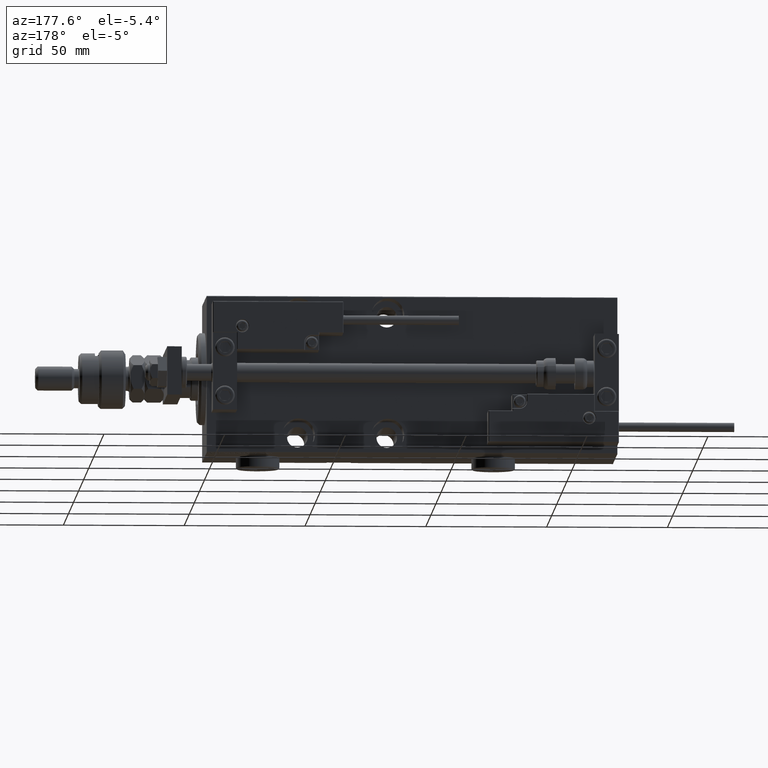
[diagram: clean part render]
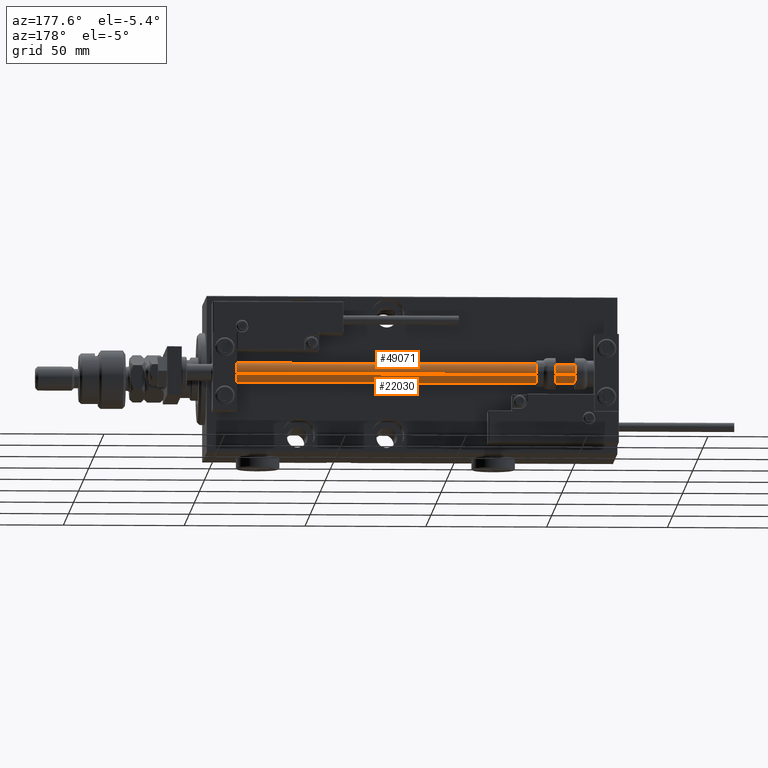
[diagram: same view with one multi-face feature highlighted, each face labeled with its STEP entity id]
A machine part, auxiliary view. The highlighted faces form ONE feature: a constant-radius fillet chain: 2 tangent blend faces with common blend radius 4 mm. The faces share edges in the B-rep.
Their STEP definitions:
[1] entity #49071 (Cylinder):
#1521 = CARTESIAN_POINT ( 'NONE',  ( 0.000000000000000000, 0.000000000000000000, 170.0000000000000000 ) ) ;
#2111 = DIRECTION ( 'NONE',  ( 1.000000000000000000, 0.000000000000000000, 0.000000000000000000 ) ) ;
#4039 = ORIENTED_EDGE ( 'NONE', *, *, #40826, .F. ) ;
#4102 = AXIS2_PLACEMENT_3D ( 'NONE', #44725, #24101, #2111 ) ;
#10460 = DIRECTION ( 'NONE',  ( 1.000000000000000000, 0.000000000000000000, 0.000000000000000000 ) ) ;
#10621 = VERTEX_POINT ( 'NONE', #46498 ) ;
#11239 = CARTESIAN_POINT ( 'NONE',  ( 4.000000000000000000, 4.898587196589412829E-16, 170.0000000000000000 ) ) ;
#11556 = DIRECTION ( 'NONE',  ( -0.000000000000000000, -0.000000000000000000, -1.000000000000000000 ) ) ;
#12365 = EDGE_LOOP ( 'NONE', ( #4039, #36294, #36986, #26961 ) ) ;
#14363 = VECTOR ( 'NONE', #45583, 1000.000000000000000 ) ;
#14781 = VECTOR ( 'NONE', #52556, 1000.000000000000000 ) ;
#16250 = LINE ( 'NONE', #45311, #14363 ) ;
#21879 = DIRECTION ( 'NONE',  ( 0.000000000000000000, 0.000000000000000000, 1.000000000000000000 ) ) ;
#21892 = EDGE_CURVE ( 'NONE', #25551, #22832, #36793, .T. ) ;
#22157 = VERTEX_POINT ( 'NONE', #41654 ) ;
#22328 = CIRCLE ( 'NONE', #4102, 4.000000000000000000 ) ;
#22832 = VERTEX_POINT ( 'NONE', #24922 ) ;
#23542 = DIRECTION ( 'NONE',  ( -1.000000000000000000, 0.000000000000000000, 0.000000000000000000 ) ) ;
#24101 = DIRECTION ( 'NONE',  ( -0.000000000000000000, -0.000000000000000000, 1.000000000000000000 ) ) ;
#24922 = CARTESIAN_POINT ( 'NONE',  ( 4.000000000000000000, 4.898587196589412829E-16, 170.0000000000000000 ) ) ;
#25551 = VERTEX_POINT ( 'NONE', #34830 ) ;
#26961 = ORIENTED_EDGE ( 'NONE', *, *, #31461, .T. ) ;
#27796 = EDGE_CURVE ( 'NONE', #25551, #10621, #16250, .T. ) ;
#28783 = AXIS2_PLACEMENT_3D ( 'NONE', #52345, #11556, #23542 ) ;
#31461 = EDGE_CURVE ( 'NONE', #10621, #22157, #22328, .T. ) ;
#31598 = AXIS2_PLACEMENT_3D ( 'NONE', #1521, #21879, #10460 ) ;
#32158 = LINE ( 'NONE', #11239, #14781 ) ;
#34830 = CARTESIAN_POINT ( 'NONE',  ( -4.000000000000000000, 0.000000000000000000, 170.0000000000000000 ) ) ;
#36294 = ORIENTED_EDGE ( 'NONE', *, *, #21892, .F. ) ;
#36556 = FACE_OUTER_BOUND ( 'NONE', #12365, .T. ) ;
#36793 = CIRCLE ( 'NONE', #31598, 4.000000000000000000 ) ;
#36986 = ORIENTED_EDGE ( 'NONE', *, *, #27796, .T. ) ;
#40627 = CYLINDRICAL_SURFACE ( 'NONE', #28783, 4.000000000000000000 ) ;
#40826 = EDGE_CURVE ( 'NONE', #22832, #22157, #32158, .T. ) ;
#41654 = CARTESIAN_POINT ( 'NONE',  ( 4.000000000000000000, 4.898587196589412829E-16, 2.000000000000029310 ) ) ;
#44725 = CARTESIAN_POINT ( 'NONE',  ( 0.000000000000000000, 0.000000000000000000, 2.000000000000029310 ) ) ;
#45311 = CARTESIAN_POINT ( 'NONE',  ( -4.000000000000000000, 0.000000000000000000, 170.0000000000000000 ) ) ;
#45583 = DIRECTION ( 'NONE',  ( -0.000000000000000000, -0.000000000000000000, -1.000000000000000000 ) ) ;
#46498 = CARTESIAN_POINT ( 'NONE',  ( -4.000000000000000000, 0.000000000000000000, 2.000000000000029310 ) ) ;
#49071 = ADVANCED_FACE ( 'NONE', ( #36556 ), #40627, .T. ) ;
#52345 = CARTESIAN_POINT ( 'NONE',  ( 0.000000000000000000, 0.000000000000000000, 170.0000000000000000 ) ) ;
#52556 = DIRECTION ( 'NONE',  ( -0.000000000000000000, -0.000000000000000000, -1.000000000000000000 ) ) ;
[2] entity #22030 (Cylinder):
#398 = CARTESIAN_POINT ( 'NONE',  ( 0.000000000000000000, 0.000000000000000000, 170.0000000000000000 ) ) ;
#1322 = AXIS2_PLACEMENT_3D ( 'NONE', #53536, #37456, #28791 ) ;
#7993 = FACE_OUTER_BOUND ( 'NONE', #31693, .T. ) ;
#8214 = AXIS2_PLACEMENT_3D ( 'NONE', #21292, #25117, #50361 ) ;
#8265 = CYLINDRICAL_SURFACE ( 'NONE', #8214, 4.000000000000000000 ) ;
#9277 = EDGE_CURVE ( 'NONE', #22157, #10621, #21242, .T. ) ;
#10621 = VERTEX_POINT ( 'NONE', #46498 ) ;
#11239 = CARTESIAN_POINT ( 'NONE',  ( 4.000000000000000000, 4.898587196589412829E-16, 170.0000000000000000 ) ) ;
#14363 = VECTOR ( 'NONE', #45583, 1000.000000000000000 ) ;
#14781 = VECTOR ( 'NONE', #52556, 1000.000000000000000 ) ;
#16250 = LINE ( 'NONE', #45311, #14363 ) ;
#16953 = DIRECTION ( 'NONE',  ( 1.000000000000000000, 0.000000000000000000, 0.000000000000000000 ) ) ;
#21242 = CIRCLE ( 'NONE', #1322, 4.000000000000000000 ) ;
#21292 = CARTESIAN_POINT ( 'NONE',  ( 0.000000000000000000, 0.000000000000000000, 170.0000000000000000 ) ) ;
#22030 = ADVANCED_FACE ( 'NONE', ( #7993 ), #8265, .T. ) ;
#22157 = VERTEX_POINT ( 'NONE', #41654 ) ;
#22832 = VERTEX_POINT ( 'NONE', #24922 ) ;
#24922 = CARTESIAN_POINT ( 'NONE',  ( 4.000000000000000000, 4.898587196589412829E-16, 170.0000000000000000 ) ) ;
#25117 = DIRECTION ( 'NONE',  ( -0.000000000000000000, -0.000000000000000000, -1.000000000000000000 ) ) ;
#25551 = VERTEX_POINT ( 'NONE', #34830 ) ;
#25578 = ORIENTED_EDGE ( 'NONE', *, *, #9277, .T. ) ;
#25921 = DIRECTION ( 'NONE',  ( 0.000000000000000000, 0.000000000000000000, 1.000000000000000000 ) ) ;
#26646 = ORIENTED_EDGE ( 'NONE', *, *, #27796, .F. ) ;
#27143 = AXIS2_PLACEMENT_3D ( 'NONE', #398, #25921, #16953 ) ;
#27796 = EDGE_CURVE ( 'NONE', #25551, #10621, #16250, .T. ) ;
#28791 = DIRECTION ( 'NONE',  ( 1.000000000000000000, 0.000000000000000000, 0.000000000000000000 ) ) ;
#29783 = CIRCLE ( 'NONE', #27143, 4.000000000000000000 ) ;
#30366 = ORIENTED_EDGE ( 'NONE', *, *, #51653, .F. ) ;
#31693 = EDGE_LOOP ( 'NONE', ( #30366, #44921, #25578, #26646 ) ) ;
#32158 = LINE ( 'NONE', #11239, #14781 ) ;
#34830 = CARTESIAN_POINT ( 'NONE',  ( -4.000000000000000000, 0.000000000000000000, 170.0000000000000000 ) ) ;
#37456 = DIRECTION ( 'NONE',  ( -0.000000000000000000, -0.000000000000000000, 1.000000000000000000 ) ) ;
#40826 = EDGE_CURVE ( 'NONE', #22832, #22157, #32158, .T. ) ;
#41654 = CARTESIAN_POINT ( 'NONE',  ( 4.000000000000000000, 4.898587196589412829E-16, 2.000000000000029310 ) ) ;
#44921 = ORIENTED_EDGE ( 'NONE', *, *, #40826, .T. ) ;
#45311 = CARTESIAN_POINT ( 'NONE',  ( -4.000000000000000000, 0.000000000000000000, 170.0000000000000000 ) ) ;
#45583 = DIRECTION ( 'NONE',  ( -0.000000000000000000, -0.000000000000000000, -1.000000000000000000 ) ) ;
#46498 = CARTESIAN_POINT ( 'NONE',  ( -4.000000000000000000, 0.000000000000000000, 2.000000000000029310 ) ) ;
#50361 = DIRECTION ( 'NONE',  ( -1.000000000000000000, 0.000000000000000000, 0.000000000000000000 ) ) ;
#51653 = EDGE_CURVE ( 'NONE', #22832, #25551, #29783, .T. ) ;
#52556 = DIRECTION ( 'NONE',  ( -0.000000000000000000, -0.000000000000000000, -1.000000000000000000 ) ) ;
#53536 = CARTESIAN_POINT ( 'NONE',  ( 0.000000000000000000, 0.000000000000000000, 2.000000000000029310 ) ) ;